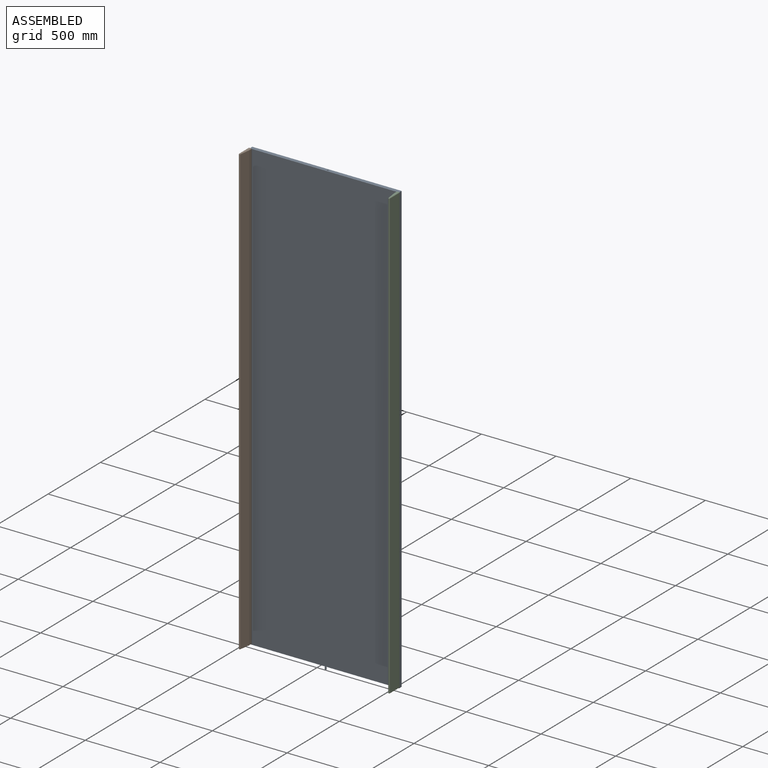
[diagram: assembled view]
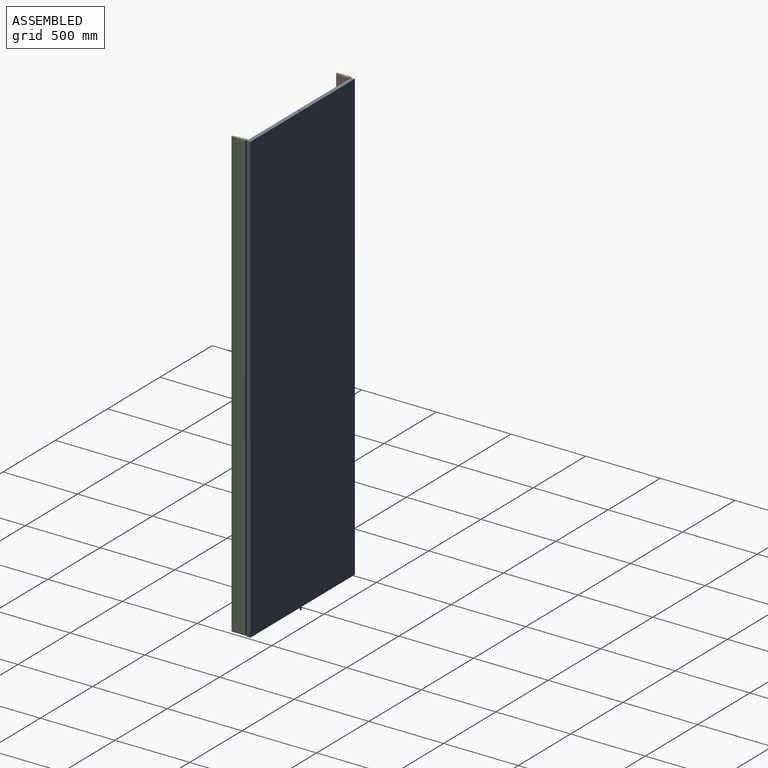
[diagram: assembled view, second angle]
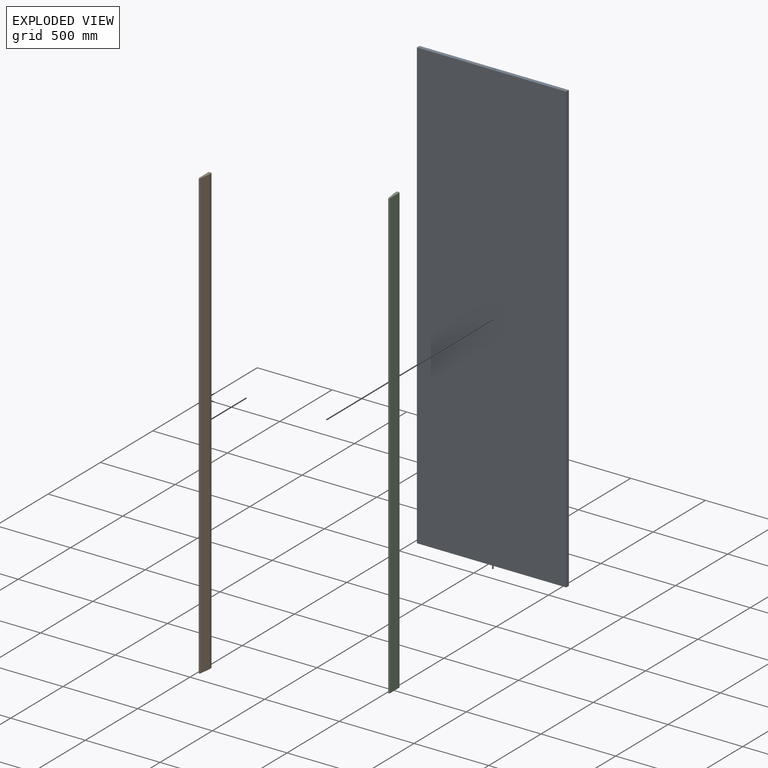
[diagram: exploded view]
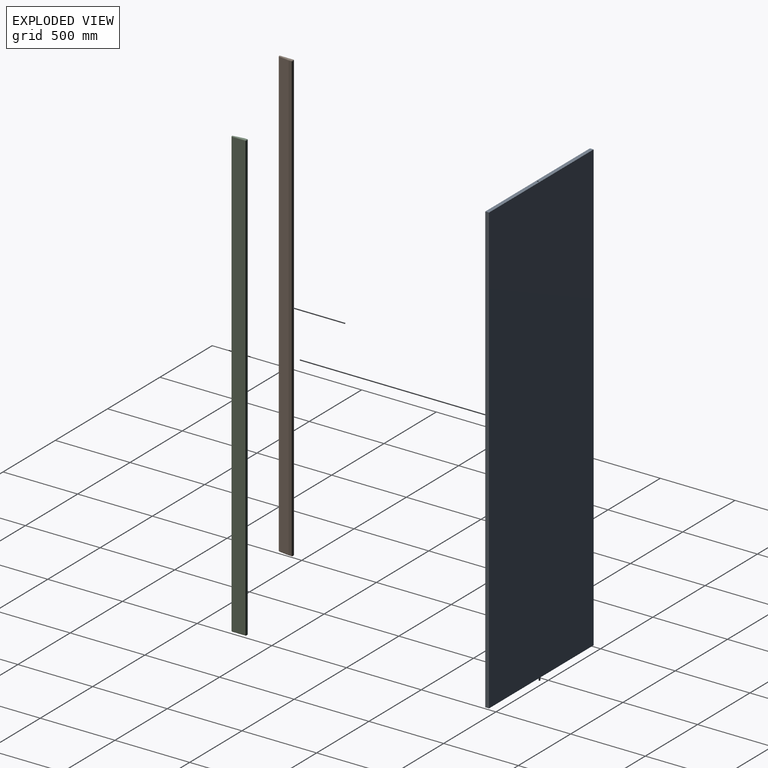
[diagram: exploded view, second angle]
ASSEMBLY  parts=3 mates=2
PART A: 10 faces, bbox 1000x25x3025 mm
  f0: plane 1000x25mm, normal (0,0,1), area 24921.4mm2, adj f1,f3,f4,f5,f6
  f1: plane 3000x25mm, normal (-1,0,0), area 75000mm2, adj f0,f2,f4,f5
  f2: plane 1000x25mm, normal (0,0,-1), area 24921.5mm2, adj f1,f3,f4,f5,f8
  f3: plane 3000x25mm, normal (1,0,0), area 75000mm2, adj f0,f2,f4,f5
  f4: plane 3000x1000mm, normal (0,-1,0), area 3000000mm2, adj f0,f1,f2,f3
  f5: plane 3000x1000mm, normal (0,1,0), area 3000000mm2, adj f0,f1,f2,f3
  f6: cylinder r=5mm len=25mm, axis (0,0,1), area 785.8mm2, adj f0,f7
  f7: plane 10x10mm, normal (0,0,1), area 78.6mm2, adj f6
  f8: cylinder r=5mm len=25mm, axis (0,0,1), area 785.4mm2, adj f2,f9
  f9: plane 10x10mm, normal (0,0,-1), area 78.5mm2, adj f8
PART B: 26 faces, bbox 20x99.6x3000 mm
  f0: plane 89.64x10mm, normal (0,0,1), area 546.4mm2, adj f9,f10,f19,f20
  f1: plane 2990x89.64mm, normal (-1,0,0), area 268037.5mm2, adj f14,f19,f22,f25
  f2: plane 89.64x10mm, normal (0,0,-1), area 546.4mm2, adj f12,f13,f21,f22
  f3: plane 2990x19.64mm, normal (1,0,0), area 58737.5mm2, adj f6,f10,f11,f12
  f4: plane 2990x10mm, normal (0,1,0), area 29900mm2, adj f6,f9,f13,f14
  f5: plane 2990x70mm, normal (0.99,-0.14,0), area 211424.9mm2, adj f11,f20,f21,f25
  f6: cylinder r=5mm len=2990mm, axis (0,0,1), area 23483.4mm2, adj f3,f4,f7,f8
  f7: sphere r=5mm, area 39.3mm2, adj f6,f9,f10
  f8: sphere r=5mm, area 39.3mm2, adj f6,f12,f13
  f9: cylinder r=5mm len=10mm, axis (-1,0,0), area 78.5mm2, adj f0,f4,f7,f15
  f10: cylinder r=5mm len=19.64mm, axis (0,1,0), area 154.3mm2, adj f0,f3,f7,f16
  f11: cylinder r=5mm len=2990mm, axis (0,0,1), area 2121.4mm2, adj f3,f5,f16,f17
  f12: cylinder r=5mm len=19.64mm, axis (0,1,0), area 154.3mm2, adj f2,f3,f8,f17
  f13: cylinder r=5mm len=10mm, axis (1,0,0), area 78.5mm2, adj f2,f4,f8,f18
  f14: cylinder r=5mm len=2990mm, axis (0,0,-1), area 23483.4mm2, adj f1,f4,f15,f18
  f15: sphere r=5mm, area 39.3mm2, adj f9,f14,f19
  f16: sphere r=5mm, area 3.5mm2, adj f10,f11,f20
  f17: sphere r=5mm, area 3.5mm2, adj f11,f12,f21
  f18: sphere r=5mm, area 39.3mm2, adj f13,f14,f22
  f19: cylinder r=5mm len=89.64mm, axis (0,1,0), area 704.1mm2, adj f0,f1,f15,f23
  f20: cylinder r=5mm len=70.71mm, axis (0.14,0.99,0), area 555.4mm2, adj f0,f5,f16,f23
  f21: cylinder r=5mm len=70.71mm, axis (0.14,0.99,0), area 555.4mm2, adj f2,f5,f17,f24
  f22: cylinder r=5mm len=89.64mm, axis (0,1,0), area 704.1mm2, adj f1,f2,f18,f24
  f23: sphere r=5mm, area 75mm2, adj f19,f20,f25
  f24: sphere r=5mm, area 75mm2, adj f21,f22,f25
  f25: cylinder r=5mm len=2990mm, axis (0,0,-1), area 44845.4mm2, adj f1,f5,f23,f24
PART C: same geometry as B
PLACE A t=(-372.83,1435.01,703.37)mm
PLACE B t=(3614.16,1410.01,1484.13)mm
PLACE C rot(axis=(0,1,0),180deg) t=(-4388.32,1410.01,1557.38)mm
MATE fastened B.f19 <-> A.f4  axis (0,1,0) through (-887.08,1410.01,3015.76)mm
MATE fastened A.f4 <-> C.f22  axis (0,-1,0) through (112.92,1410.01,3015.76)mm
